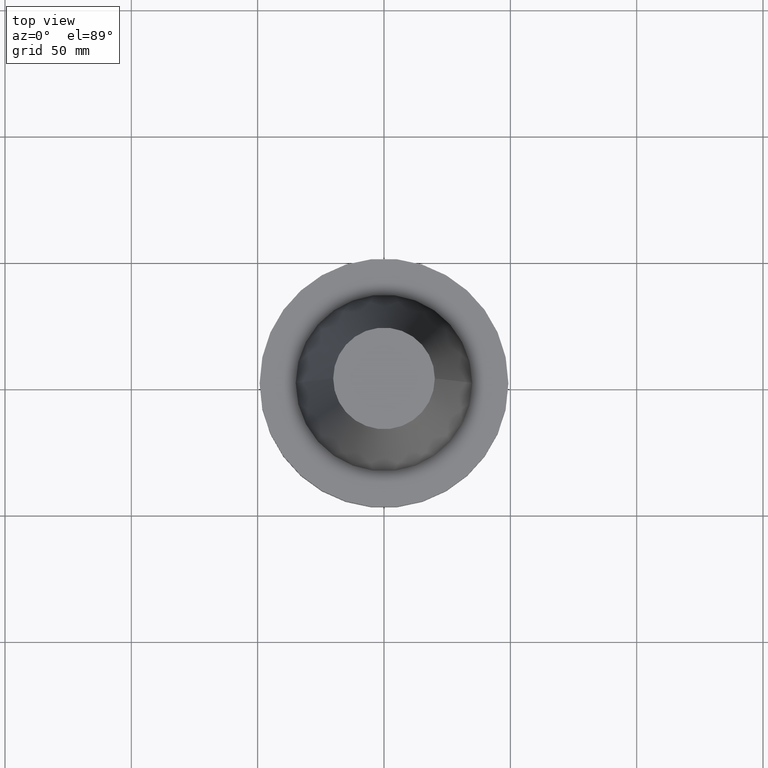
[diagram: clean part render]
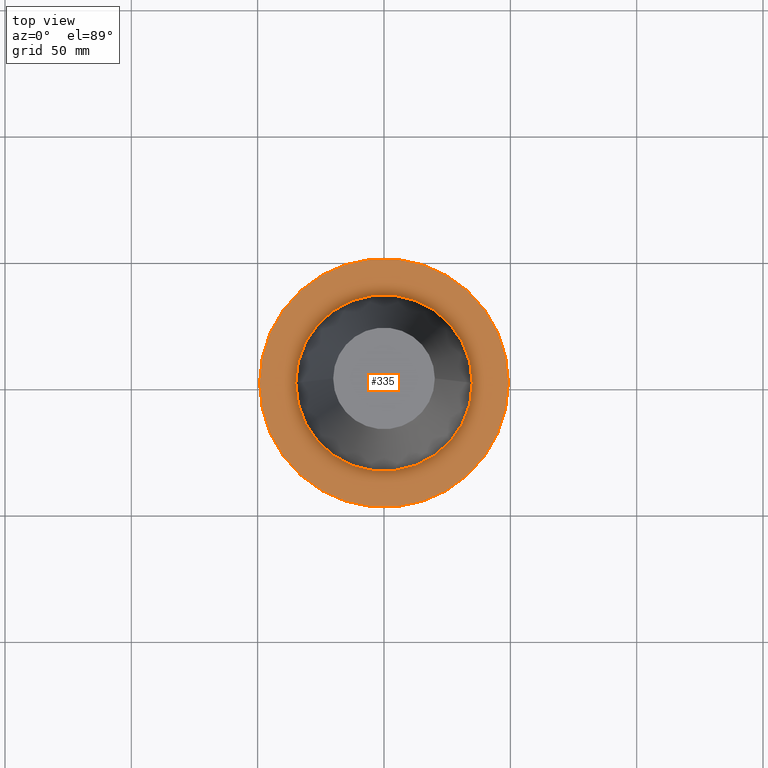
[diagram: same view with one face highlighted and labeled with its STEP entity id]
A machine part, top view. The second image highlights one B-rep face of the part: STEP entity #335.
In plain terms, the highlighted planar face has unit normal (0, 0, -1).
Its self-contained STEP definition (entity closure, byte-faithful):
#13 = DIRECTION ( 'NONE',  ( -1.000000000000000000, 0.000000000000000000, -0.000000000000000000 ) ) ;
#42 = CIRCLE ( 'NONE', #173, 34.92499999999999005 ) ;
#49 = EDGE_CURVE ( 'NONE', #572, #131, #570, .T. ) ;
#54 = CARTESIAN_POINT ( 'NONE',  ( -34.92499999999999005, 4.277078946022130098E-15, -1.499999999999987566 ) ) ;
#56 = DIRECTION ( 'NONE',  ( 1.000000000000000000, 0.000000000000000000, 0.000000000000000000 ) ) ;
#89 = CARTESIAN_POINT ( 'NONE',  ( -49.21499999999999631, 6.027099222003697826E-15, -1.499999999999987566 ) ) ;
#114 = EDGE_CURVE ( 'NONE', #853, #820, #225, .T. ) ;
#124 = DIRECTION ( 'NONE',  ( -0.000000000000000000, -0.000000000000000000, 1.000000000000000000 ) ) ;
#131 = VERTEX_POINT ( 'NONE', #54 ) ;
#154 = ORIENTED_EDGE ( 'NONE', *, *, #208, .T. ) ;
#163 = DIRECTION ( 'NONE',  ( -0.000000000000000000, -0.000000000000000000, 1.000000000000000000 ) ) ;
#173 = AXIS2_PLACEMENT_3D ( 'NONE', #783, #124, #394 ) ;
#176 = DIRECTION ( 'NONE',  ( -0.000000000000000000, -0.000000000000000000, 1.000000000000000000 ) ) ;
#208 = EDGE_CURVE ( 'NONE', #820, #853, #353, .T. ) ;
#216 = ORIENTED_EDGE ( 'NONE', *, *, #114, .T. ) ;
#225 = CIRCLE ( 'NONE', #709, 49.21499999999999631 ) ;
#334 = EDGE_CURVE ( 'NONE', #131, #572, #42, .T. ) ;
#335 = ADVANCED_FACE ( 'NONE', ( #800, #756 ), #682, .F. ) ;
#353 = CIRCLE ( 'NONE', #571, 49.21499999999999631 ) ;
#379 = ORIENTED_EDGE ( 'NONE', *, *, #49, .F. ) ;
#394 = DIRECTION ( 'NONE',  ( 1.000000000000000000, 0.000000000000000000, 0.000000000000000000 ) ) ;
#423 = CARTESIAN_POINT ( 'NONE',  ( 0.000000000000000000, 0.000000000000000000, -1.499999999999987566 ) ) ;
#485 = AXIS2_PLACEMENT_3D ( 'NONE', #423, #163, #683 ) ;
#509 = EDGE_LOOP ( 'NONE', ( #379, #802 ) ) ;
#538 = DIRECTION ( 'NONE',  ( 0.000000000000000000, 0.000000000000000000, -1.000000000000000000 ) ) ;
#570 = CIRCLE ( 'NONE', #485, 34.92499999999999005 ) ;
#571 = AXIS2_PLACEMENT_3D ( 'NONE', #855, #714, #56 ) ;
#572 = VERTEX_POINT ( 'NONE', #702 ) ;
#610 = EDGE_LOOP ( 'NONE', ( #154, #216 ) ) ;
#634 = AXIS2_PLACEMENT_3D ( 'NONE', #805, #538, #13 ) ;
#682 = PLANE ( 'NONE',  #634 ) ;
#683 = DIRECTION ( 'NONE',  ( 1.000000000000000000, 0.000000000000000000, 0.000000000000000000 ) ) ;
#698 = DIRECTION ( 'NONE',  ( 1.000000000000000000, 0.000000000000000000, 0.000000000000000000 ) ) ;
#702 = CARTESIAN_POINT ( 'NONE',  ( 34.92499999999999005, 0.000000000000000000, -1.499999999999987566 ) ) ;
#709 = AXIS2_PLACEMENT_3D ( 'NONE', #712, #176, #698 ) ;
#712 = CARTESIAN_POINT ( 'NONE',  ( 0.000000000000000000, 0.000000000000000000, -1.499999999999987566 ) ) ;
#714 = DIRECTION ( 'NONE',  ( -0.000000000000000000, -0.000000000000000000, 1.000000000000000000 ) ) ;
#744 = CARTESIAN_POINT ( 'NONE',  ( 49.21499999999999631, 0.000000000000000000, -1.499999999999987566 ) ) ;
#756 = FACE_OUTER_BOUND ( 'NONE', #610, .T. ) ;
#783 = CARTESIAN_POINT ( 'NONE',  ( 0.000000000000000000, 0.000000000000000000, -1.499999999999987566 ) ) ;
#800 = FACE_BOUND ( 'NONE', #509, .T. ) ;
#802 = ORIENTED_EDGE ( 'NONE', *, *, #334, .F. ) ;
#805 = CARTESIAN_POINT ( 'NONE',  ( 0.000000000000000000, 49.21499999999999631, -1.499999999999992895 ) ) ;
#820 = VERTEX_POINT ( 'NONE', #744 ) ;
#853 = VERTEX_POINT ( 'NONE', #89 ) ;
#855 = CARTESIAN_POINT ( 'NONE',  ( 0.000000000000000000, 0.000000000000000000, -1.499999999999987566 ) ) ;